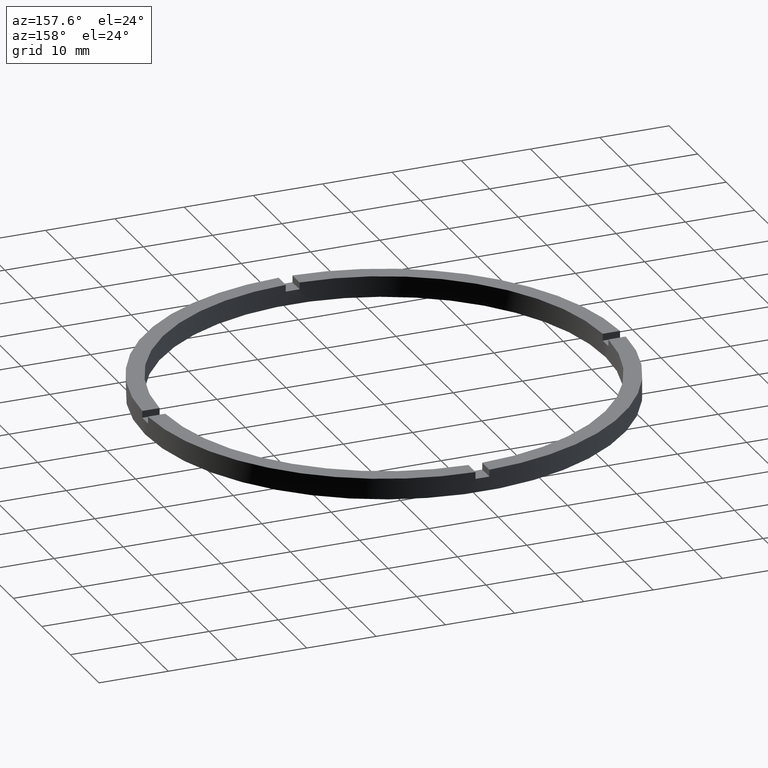
[diagram: clean part render]
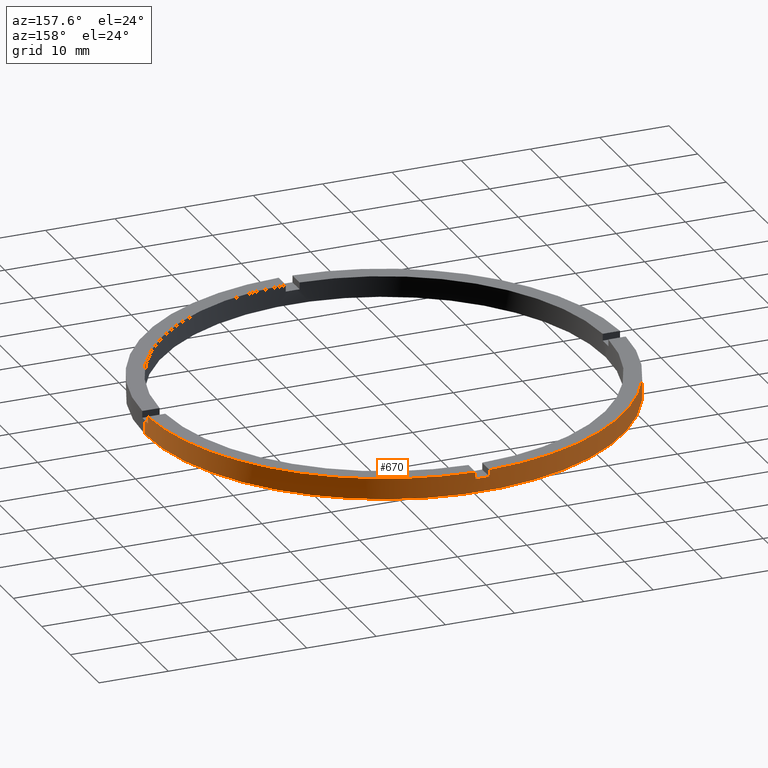
[diagram: same view with one face highlighted and labeled with its STEP entity id]
A machine part, auxiliary view. The second image highlights one B-rep face of the part: STEP entity #670.
In plain terms, the highlighted cylindrical surface (partial cylindrical patch) has radius 34.5 mm, axis along (-0, -0, -1).
Its self-contained STEP definition (entity closure, byte-faithful):
#2 = CIRCLE ( 'NONE', #62, 34.49999999999999289 ) ;
#8 = VECTOR ( 'NONE', #444, 1000.000000000000000 ) ;
#17 = LINE ( 'NONE', #386, #8 ) ;
#35 = CIRCLE ( 'NONE', #525, 34.49999999999999289 ) ;
#37 = AXIS2_PLACEMENT_3D ( 'NONE', #439, #374, #245 ) ;
#42 = CARTESIAN_POINT ( 'NONE',  ( -1.000000000000024869, 34.48550420104075442, 3.000000000000000000 ) ) ;
#62 = AXIS2_PLACEMENT_3D ( 'NONE', #136, #437, #542 ) ;
#64 = VERTEX_POINT ( 'NONE', #678 ) ;
#68 = ORIENTED_EDGE ( 'NONE', *, *, #709, .T. ) ;
#69 = VERTEX_POINT ( 'NONE', #479 ) ;
#73 = VERTEX_POINT ( 'NONE', #717 ) ;
#75 = CARTESIAN_POINT ( 'NONE',  ( -1.000000000000024869, 34.48550420104075442, 2.000000000000000000 ) ) ;
#88 = VERTEX_POINT ( 'NONE', #522 ) ;
#116 = VERTEX_POINT ( 'NONE', #216 ) ;
#120 = ORIENTED_EDGE ( 'NONE', *, *, #578, .F. ) ;
#122 = AXIS2_PLACEMENT_3D ( 'NONE', #690, #442, #154 ) ;
#126 = ORIENTED_EDGE ( 'NONE', *, *, #513, .F. ) ;
#131 = CARTESIAN_POINT ( 'NONE',  ( 34.49999999999999289, 4.225031457058367344E-15, 3.000000000000000000 ) ) ;
#136 = CARTESIAN_POINT ( 'NONE',  ( 0.000000000000000000, 0.000000000000000000, 2.000000000000000000 ) ) ;
#138 = CARTESIAN_POINT ( 'NONE',  ( -1.000000000000024869, 34.48550420104075442, 3.000000000000000000 ) ) ;
#139 = EDGE_LOOP ( 'NONE', ( #720, #580, #68, #474, #126, #463, #120, #346, #743, #727, #482, #342 ) ) ;
#143 = CARTESIAN_POINT ( 'NONE',  ( 0.000000000000000000, 0.000000000000000000, 2.000000000000000000 ) ) ;
#144 = VERTEX_POINT ( 'NONE', #519 ) ;
#154 = DIRECTION ( 'NONE',  ( 1.000000000000000000, 0.000000000000000000, 0.000000000000000000 ) ) ;
#183 = DIRECTION ( 'NONE',  ( -0.000000000000000000, -0.000000000000000000, -1.000000000000000000 ) ) ;
#193 = CARTESIAN_POINT ( 'NONE',  ( 0.000000000000000000, 0.000000000000000000, 3.000000000000000000 ) ) ;
#198 = EDGE_CURVE ( 'NONE', #73, #116, #237, .T. ) ;
#206 = VECTOR ( 'NONE', #418, 1000.000000000000000 ) ;
#207 = AXIS2_PLACEMENT_3D ( 'NONE', #679, #499, #249 ) ;
#211 = CARTESIAN_POINT ( 'NONE',  ( 0.000000000000000000, 0.000000000000000000, 2.000000000000000000 ) ) ;
#216 = CARTESIAN_POINT ( 'NONE',  ( 34.48550420104076153, 0.9999999999998419042, 2.000000000000000000 ) ) ;
#233 = EDGE_CURVE ( 'NONE', #590, #407, #725, .T. ) ;
#237 = LINE ( 'NONE', #705, #206 ) ;
#245 = DIRECTION ( 'NONE',  ( 1.000000000000000000, 0.000000000000000000, 0.000000000000000000 ) ) ;
#247 = DIRECTION ( 'NONE',  ( 1.000000000000000000, 0.000000000000000000, 0.000000000000000000 ) ) ;
#249 = DIRECTION ( 'NONE',  ( -1.000000000000000000, 0.000000000000000000, 0.000000000000000000 ) ) ;
#250 = EDGE_CURVE ( 'NONE', #607, #407, #736, .T. ) ;
#253 = VECTOR ( 'NONE', #294, 1000.000000000000000 ) ;
#258 = CARTESIAN_POINT ( 'NONE',  ( -34.48550420104076153, 0.9999999999999733546, 3.000000000000000000 ) ) ;
#261 = EDGE_CURVE ( 'NONE', #377, #88, #766, .T. ) ;
#276 = AXIS2_PLACEMENT_3D ( 'NONE', #211, #765, #279 ) ;
#277 = VECTOR ( 'NONE', #390, 1000.000000000000000 ) ;
#279 = DIRECTION ( 'NONE',  ( 1.000000000000000000, 0.000000000000000000, 0.000000000000000000 ) ) ;
#280 = CYLINDRICAL_SURFACE ( 'NONE', #207, 34.49999999999999289 ) ;
#281 = FACE_OUTER_BOUND ( 'NONE', #139, .T. ) ;
#287 = CIRCLE ( 'NONE', #122, 34.49999999999999289 ) ;
#294 = DIRECTION ( 'NONE',  ( -0.000000000000000000, -0.000000000000000000, -1.000000000000000000 ) ) ;
#342 = ORIENTED_EDGE ( 'NONE', *, *, #198, .T. ) ;
#346 = ORIENTED_EDGE ( 'NONE', *, *, #250, .T. ) ;
#362 = CARTESIAN_POINT ( 'NONE',  ( -34.49999999999999289, 0.000000000000000000, 2.000000000000000000 ) ) ;
#374 = DIRECTION ( 'NONE',  ( 0.000000000000000000, 0.000000000000000000, 1.000000000000000000 ) ) ;
#377 = VERTEX_POINT ( 'NONE', #362 ) ;
#386 = CARTESIAN_POINT ( 'NONE',  ( 0.9999999999999751310, 34.48550420104076153, 3.000000000000000000 ) ) ;
#390 = DIRECTION ( 'NONE',  ( 0.000000000000000000, 0.000000000000000000, 1.000000000000000000 ) ) ;
#407 = VERTEX_POINT ( 'NONE', #75 ) ;
#416 = CIRCLE ( 'NONE', #37, 34.49999999999999289 ) ;
#418 = DIRECTION ( 'NONE',  ( -0.000000000000000000, -0.000000000000000000, -1.000000000000000000 ) ) ;
#430 = VERTEX_POINT ( 'NONE', #740 ) ;
#437 = DIRECTION ( 'NONE',  ( 0.000000000000000000, 0.000000000000000000, 1.000000000000000000 ) ) ;
#439 = CARTESIAN_POINT ( 'NONE',  ( 0.000000000000000000, 0.000000000000000000, 0.000000000000000000 ) ) ;
#441 = EDGE_CURVE ( 'NONE', #590, #69, #17, .T. ) ;
#442 = DIRECTION ( 'NONE',  ( 0.000000000000000000, 0.000000000000000000, 1.000000000000000000 ) ) ;
#444 = DIRECTION ( 'NONE',  ( 0.000000000000000000, 0.000000000000000000, 1.000000000000000000 ) ) ;
#461 = CARTESIAN_POINT ( 'NONE',  ( -34.49999999999999289, 0.000000000000000000, 3.000000000000000000 ) ) ;
#463 = ORIENTED_EDGE ( 'NONE', *, *, #620, .T. ) ;
#474 = ORIENTED_EDGE ( 'NONE', *, *, #261, .F. ) ;
#479 = CARTESIAN_POINT ( 'NONE',  ( 0.9999999999999751310, 34.48550420104076153, 3.000000000000000000 ) ) ;
#482 = ORIENTED_EDGE ( 'NONE', *, *, #657, .F. ) ;
#499 = DIRECTION ( 'NONE',  ( -0.000000000000000000, -0.000000000000000000, -1.000000000000000000 ) ) ;
#500 = VECTOR ( 'NONE', #767, 1000.000000000000000 ) ;
#504 = EDGE_CURVE ( 'NONE', #756, #430, #774, .T. ) ;
#513 = EDGE_CURVE ( 'NONE', #144, #377, #2, .T. ) ;
#519 = CARTESIAN_POINT ( 'NONE',  ( -34.48550420104076153, 0.9999999999999733546, 2.000000000000000000 ) ) ;
#522 = CARTESIAN_POINT ( 'NONE',  ( -34.49999999999999289, 0.000000000000000000, 0.000000000000000000 ) ) ;
#525 = AXIS2_PLACEMENT_3D ( 'NONE', #193, #591, #618 ) ;
#538 = EDGE_CURVE ( 'NONE', #756, #116, #548, .T. ) ;
#542 = DIRECTION ( 'NONE',  ( 1.000000000000000000, 0.000000000000000000, 0.000000000000000000 ) ) ;
#548 = CIRCLE ( 'NONE', #745, 34.49999999999999289 ) ;
#550 = LINE ( 'NONE', #258, #277 ) ;
#578 = EDGE_CURVE ( 'NONE', #607, #64, #287, .T. ) ;
#580 = ORIENTED_EDGE ( 'NONE', *, *, #504, .T. ) ;
#590 = VERTEX_POINT ( 'NONE', #611 ) ;
#591 = DIRECTION ( 'NONE',  ( 0.000000000000000000, 0.000000000000000000, 1.000000000000000000 ) ) ;
#597 = DIRECTION ( 'NONE',  ( 0.000000000000000000, 0.000000000000000000, 1.000000000000000000 ) ) ;
#607 = VERTEX_POINT ( 'NONE', #138 ) ;
#611 = CARTESIAN_POINT ( 'NONE',  ( 0.9999999999999751310, 34.48550420104076153, 2.000000000000000000 ) ) ;
#618 = DIRECTION ( 'NONE',  ( 1.000000000000000000, 0.000000000000000000, 0.000000000000000000 ) ) ;
#620 = EDGE_CURVE ( 'NONE', #144, #64, #550, .T. ) ;
#633 = CARTESIAN_POINT ( 'NONE',  ( 34.49999999999999289, 4.225031457058367344E-15, 2.000000000000000000 ) ) ;
#657 = EDGE_CURVE ( 'NONE', #73, #69, #35, .T. ) ;
#670 = ADVANCED_FACE ( 'NONE', ( #281 ), #280, .T. ) ;
#678 = CARTESIAN_POINT ( 'NONE',  ( -34.48550420104076153, 0.9999999999999733546, 3.000000000000000000 ) ) ;
#679 = CARTESIAN_POINT ( 'NONE',  ( 0.000000000000000000, 0.000000000000000000, 3.000000000000000000 ) ) ;
#690 = CARTESIAN_POINT ( 'NONE',  ( 0.000000000000000000, 0.000000000000000000, 3.000000000000000000 ) ) ;
#705 = CARTESIAN_POINT ( 'NONE',  ( 34.48550420104076153, 0.9999999999998419042, 3.000000000000000000 ) ) ;
#709 = EDGE_CURVE ( 'NONE', #430, #88, #416, .T. ) ;
#717 = CARTESIAN_POINT ( 'NONE',  ( 34.48550420104076153, 0.9999999999998419042, 3.000000000000000000 ) ) ;
#720 = ORIENTED_EDGE ( 'NONE', *, *, #538, .F. ) ;
#725 = CIRCLE ( 'NONE', #276, 34.49999999999999289 ) ;
#727 = ORIENTED_EDGE ( 'NONE', *, *, #441, .T. ) ;
#736 = LINE ( 'NONE', #42, #763 ) ;
#740 = CARTESIAN_POINT ( 'NONE',  ( 34.49999999999999289, 4.225031457058367344E-15, 0.000000000000000000 ) ) ;
#743 = ORIENTED_EDGE ( 'NONE', *, *, #233, .F. ) ;
#745 = AXIS2_PLACEMENT_3D ( 'NONE', #143, #597, #247 ) ;
#756 = VERTEX_POINT ( 'NONE', #633 ) ;
#763 = VECTOR ( 'NONE', #183, 1000.000000000000000 ) ;
#765 = DIRECTION ( 'NONE',  ( 0.000000000000000000, -0.000000000000000000, 1.000000000000000000 ) ) ;
#766 = LINE ( 'NONE', #461, #500 ) ;
#767 = DIRECTION ( 'NONE',  ( -0.000000000000000000, -0.000000000000000000, -1.000000000000000000 ) ) ;
#774 = LINE ( 'NONE', #131, #253 ) ;